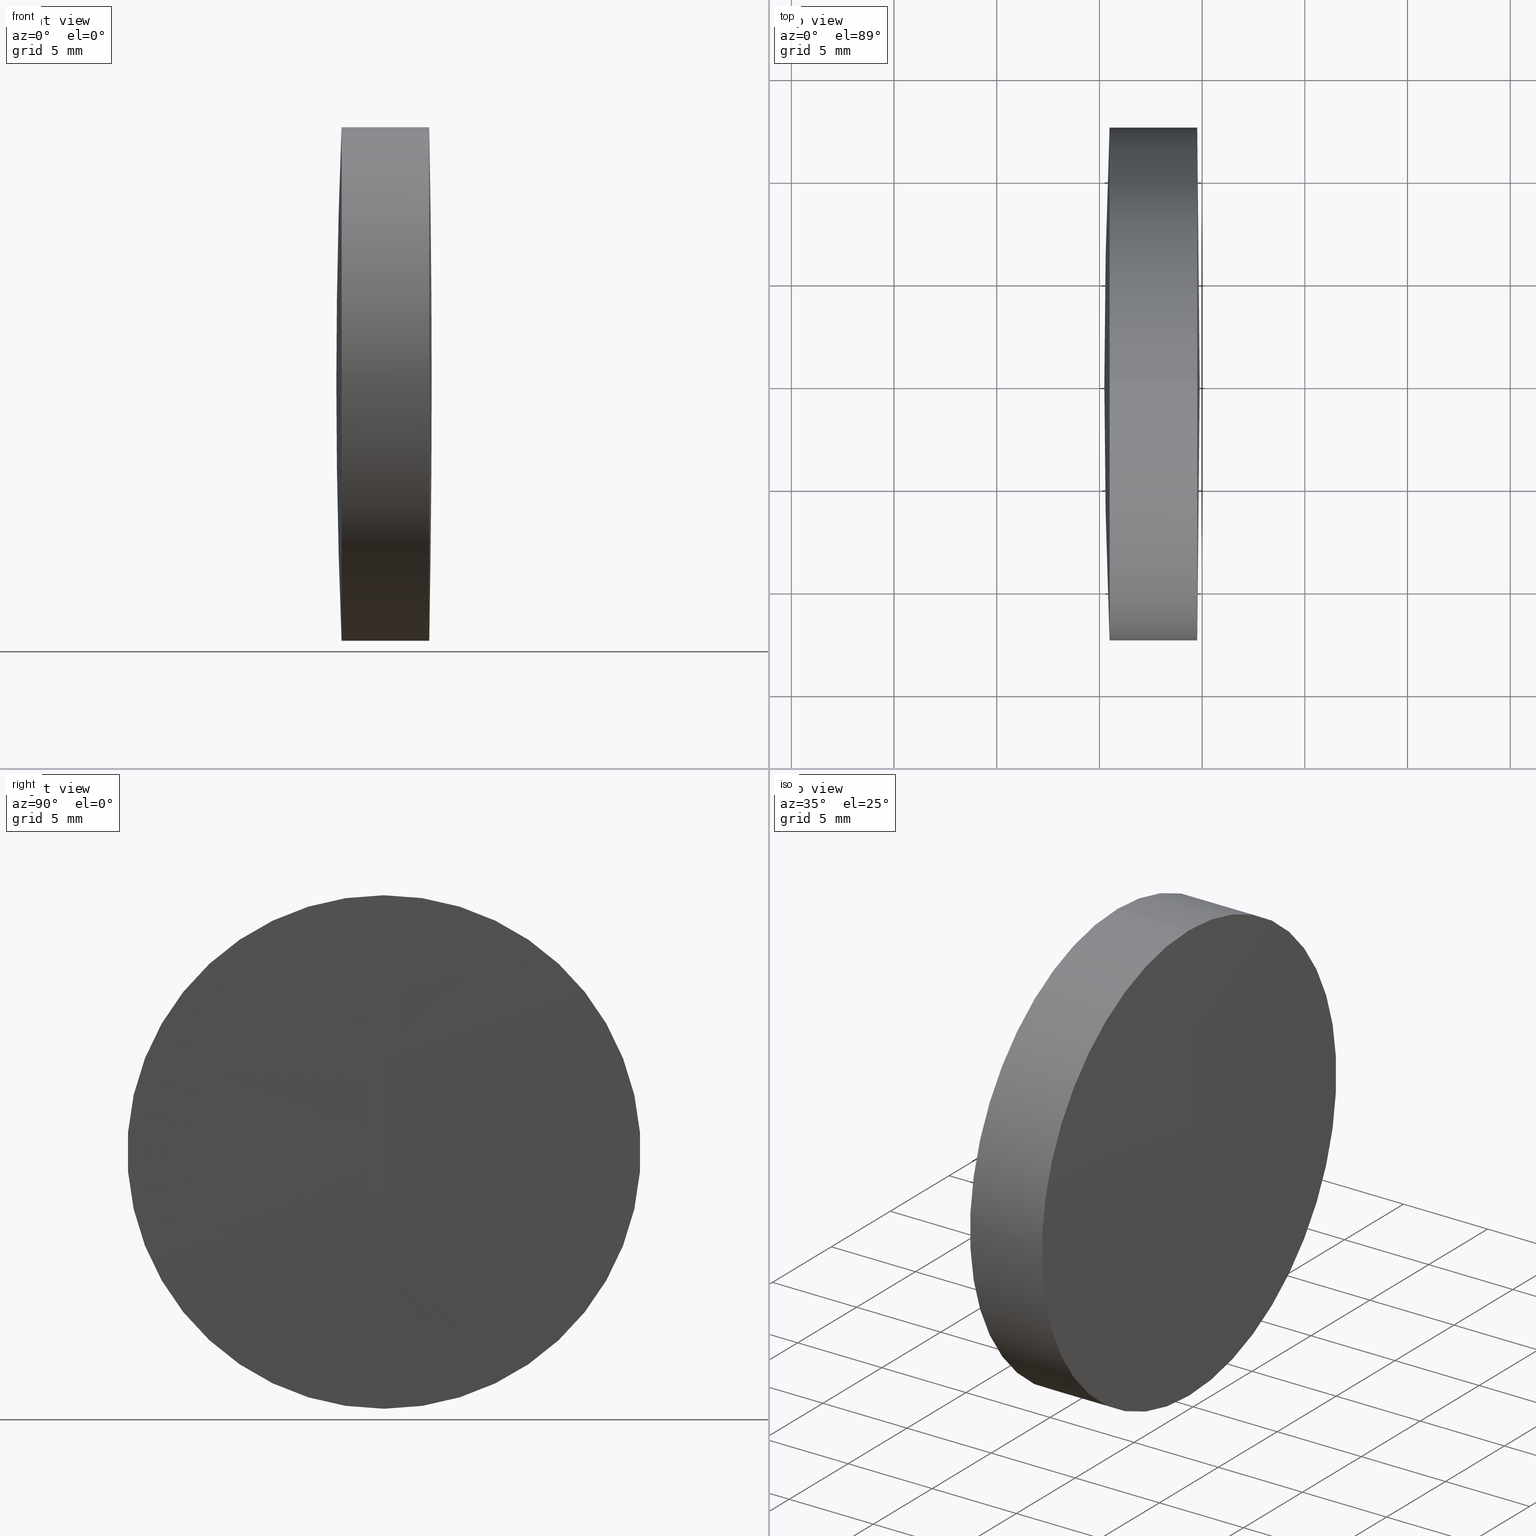
[diagram: canonical four-view strip — front | top / right | iso, engineering-drawing reading convention]
A machine part, canonical four-view strip (front | top / right | iso — engineering-drawing reading convention). The complete STEP part file that produces these views, byte-faithful:
ISO-10303-21;
HEADER;
FILE_DESCRIPTION (( 'STEP AP214' ),
    '1' );
FILE_NAME ('145049.STEP',
    '2019-05-13T05:37:13',
    ( 'user' ),
    ( '΢���й�' ),
    'SwSTEP 2.0',
    'SolidWorks 2016',
    '' );
FILE_SCHEMA (( 'AUTOMOTIVE_DESIGN' ));
ENDSEC;

DATA;
#1 = ORIENTED_EDGE ( 'NONE', *, *, #202, .F. ) ;
#2 = PRESENTATION_STYLE_ASSIGNMENT (( #316 ) ) ;
#3 = ADVANCED_FACE ( 'NONE', ( #252 ), #59, .T. ) ;
#4 = ORIENTED_EDGE ( 'NONE', *, *, #58, .T. ) ;
#5 = VERTEX_POINT ( 'NONE', #134 ) ;
#6 = CYLINDRICAL_SURFACE ( 'NONE', #265, 12.49999999999999300 ) ;
#7 = ORIENTED_EDGE ( 'NONE', *, *, #135, .F. ) ;
#8 = PRESENTATION_LAYER_ASSIGNMENT (  '', '', ( #336 ) ) ;
#9 = SPHERICAL_SURFACE ( 'NONE', #91, 307.0000000000000600 ) ;
#10 = EDGE_LOOP ( 'NONE', ( #1, #200, #343 ) ) ;
#11 = CARTESIAN_POINT ( 'NONE',  ( -449.9203310264251700, 0.0000000000000000000, 0.0000000000000000000 ) ) ;
#12 = DIRECTION ( 'NONE',  ( -1.000000000000000000, -0.0000000000000000000, -0.0000000000000000000 ) ) ;
#13 = CARTESIAN_POINT ( 'NONE',  ( 217.8796689735747800, 0.0000000000000000000, 1.244371753850170700E-014 ) ) ;
#14 = SPHERICAL_SURFACE ( 'NONE', #286, 203.0000000000000000 ) ;
#15 = DIRECTION ( 'NONE',  ( 0.0000000000000000000, 1.000000000000000000, 0.0000000000000000000 ) ) ;
#16 =( GEOMETRIC_REPRESENTATION_CONTEXT ( 3 ) GLOBAL_UNCERTAINTY_ASSIGNED_CONTEXT ( ( #149 ) ) GLOBAL_UNIT_ASSIGNED_CONTEXT ( ( #256, #279, #158 ) ) REPRESENTATION_CONTEXT ( 'NONE', 'WORKASPACE' ) );
#17 = VERTEX_POINT ( 'NONE', #166 ) ;
#18 = CARTESIAN_POINT ( 'NONE',  ( -0.5519199926577972300, 0.0000000000000000000, 12.49999999999999300 ) ) ;
#19 = SPHERICAL_SURFACE ( 'NONE', #67, 203.0000000000000300 ) ;
#20 = DIRECTION ( 'NONE',  ( -1.000000000000000000, -0.0000000000000000000, -0.0000000000000000000 ) ) ;
#21 = ORIENTED_EDGE ( 'NONE', *, *, #57, .F. ) ;
#22 = FILL_AREA_STYLE ('',( #317 ) ) ;
#23 =( NAMED_UNIT ( * ) PLANE_ANGLE_UNIT ( ) SI_UNIT ( $, .RADIAN. ) );
#24 = FILL_AREA_STYLE ('',( #290 ) ) ;
#25 = CIRCLE ( 'NONE', #197, 669.7999999999999500 ) ;
#26 = DIRECTION ( 'NONE',  ( 0.0000000000000000000, 0.0000000000000000000, -1.000000000000000000 ) ) ;
#27 = UNCERTAINTY_MEASURE_WITH_UNIT (LENGTH_MEASURE( 1.000000000000000100E-005 ), #181, 'distance_accuracy_value', 'NONE');
#28 = ORIENTED_EDGE ( 'NONE', *, *, #128, .T. ) ;
#29 = ADVANCED_FACE ( 'NONE', ( #199 ), #331, .T. ) ;
#30 = AXIS2_PLACEMENT_3D ( 'NONE', #100, #287, #121 ) ;
#31 = SPHERICAL_SURFACE ( 'NONE', #177, 203.0000000000000000 ) ;
#32 = DIRECTION ( 'NONE',  ( -0.0000000000000000000, 1.000000000000000000, 1.224646799147353200E-016 ) ) ;
#33 = DIRECTION ( 'NONE',  ( 0.0000000000000000000, 0.0000000000000000000, 1.000000000000000000 ) ) ;
#34 = AXIS2_PLACEMENT_3D ( 'NONE', #293, #131, #318 ) ;
#35 = DIRECTION ( 'NONE',  ( 0.0000000000000000000, 0.0000000000000000000, 1.000000000000000000 ) ) ;
#36 = CARTESIAN_POINT ( 'NONE',  ( 14.87966897357473400, 0.0000000000000000000, 1.355252715606880500E-017 ) ) ;
#37 = EDGE_CURVE ( 'NONE', #195, #5, #52, .T. ) ;
#38 = VERTEX_POINT ( 'NONE', #188 ) ;
#39 = CLOSED_SHELL ( 'NONE', ( #246, #304, #327, #3, #267, #87 ) ) ;
#40 = DIRECTION ( 'NONE',  ( 0.0000000000000000000, 0.0000000000000000000, -1.000000000000000000 ) ) ;
#41 = EDGE_CURVE ( 'NONE', #17, #330, #340, .T. ) ;
#42 = CARTESIAN_POINT ( 'NONE',  ( 217.4944512575927400, 0.0000000000000000000, 0.0000000000000000000 ) ) ;
#43 = SURFACE_STYLE_USAGE ( .BOTH. , #211 ) ;
#44 = SPHERICAL_SURFACE ( 'NONE', #322, 669.7999999999999500 ) ;
#45 = ORIENTED_EDGE ( 'NONE', *, *, #271, .T. ) ;
#46 = EDGE_LOOP ( 'NONE', ( #144, #93, #28, #21 ) ) ;
#47 = SURFACE_STYLE_USAGE ( .BOTH. , #215 ) ;
#48 = ORIENTED_EDGE ( 'NONE', *, *, #117, .F. ) ;
#49 = CARTESIAN_POINT ( 'NONE',  ( 14.87966897357473400, 0.0000000000000000000, 1.355252715606880500E-017 ) ) ;
#50 = DIRECTION ( 'NONE',  ( 0.0000000000000000000, 0.0000000000000000000, -1.000000000000000000 ) ) ;
#51 = AXIS2_PLACEMENT_3D ( 'NONE', #11, #113, #231 ) ;
#52 = CIRCLE ( 'NONE', #208, 203.0000000000000300 ) ;
#53 = ORIENTED_EDGE ( 'NONE', *, *, #171, .T. ) ;
#54 = ORIENTED_EDGE ( 'NONE', *, *, #183, .T. ) ;
#55 = ORIENTED_EDGE ( 'NONE', *, *, #241, .T. ) ;
#56 = PRODUCT_DEFINITION ( 'δ֪', '', #79, #326 ) ;
#57 = EDGE_CURVE ( 'NONE', #212, #302, #125, .T. ) ;
#58 = EDGE_CURVE ( 'NONE', #5, #86, #260, .T. ) ;
#59 = SPHERICAL_SURFACE ( 'NONE', #190, 307.0000000000000600 ) ;
#60 = SURFACE_STYLE_FILL_AREA ( #22 ) ;
#61 = ORIENTED_EDGE ( 'NONE', *, *, #84, .F. ) ;
#62 = ORIENTED_EDGE ( 'NONE', *, *, #171, .F. ) ;
#63 = DIRECTION ( 'NONE',  ( -1.000000000000000000, -0.0000000000000000000, -0.0000000000000000000 ) ) ;
#64 = VECTOR ( 'NONE', #312, 1000.000000000000000 ) ;
#65 = FILL_AREA_STYLE ('',( #311 ) ) ;
#66 = DIRECTION ( 'NONE',  ( 0.0000000000000000000, 1.000000000000000000, 0.0000000000000000000 ) ) ;
#67 = AXIS2_PLACEMENT_3D ( 'NONE', #254, #103, #35 ) ;
#68 = CARTESIAN_POINT ( 'NONE',  ( -449.9203310264251700, 0.0000000000000000000, 0.0000000000000000000 ) ) ;
#69 = DIRECTION ( 'NONE',  ( 0.0000000000000000000, 0.0000000000000000000, 1.000000000000000000 ) ) ;
#70 = FACE_OUTER_BOUND ( 'NONE', #155, .T. ) ;
#71 = ORIENTED_EDGE ( 'NONE', *, *, #135, .T. ) ;
#72 = SURFACE_STYLE_FILL_AREA ( #65 ) ;
#73 =( NAMED_UNIT ( * ) PLANE_ANGLE_UNIT ( ) SI_UNIT ( $, .RADIAN. ) );
#74 = DIRECTION ( 'NONE',  ( -1.000000000000000000, -0.0000000000000000000, -0.0000000000000000000 ) ) ;
#75 =( NAMED_UNIT ( * ) PLANE_ANGLE_UNIT ( ) SI_UNIT ( $, .RADIAN. ) );
#76 = DIRECTION ( 'NONE',  ( 0.0000000000000000000, 0.0000000000000000000, 1.000000000000000000 ) ) ;
#77 = CARTESIAN_POINT ( 'NONE',  ( 14.87966897357473400, 0.0000000000000000000, 1.355252715606880500E-017 ) ) ;
#78 = FACE_OUTER_BOUND ( 'NONE', #157, .T. ) ;
#79 = PRODUCT_DEFINITION_FORMATION_WITH_SPECIFIED_SOURCE ( '�κ�', '', #250, .NOT_KNOWN. ) ;
#80 = CARTESIAN_POINT ( 'NONE',  ( 522.2396689735747900, 0.0000000000000000000, -1.501556658541519300E-015 ) ) ;
#81 = DIRECTION ( 'NONE',  ( 0.0000000000000000000, 0.0000000000000000000, 1.000000000000000000 ) ) ;
#82 = EDGE_CURVE ( 'NONE', #195, #86, #268, .T. ) ;
#83 = VERTEX_POINT ( 'NONE', #346 ) ;
#84 = EDGE_CURVE ( 'NONE', #275, #302, #112, .T. ) ;
#85 = SHAPE_DEFINITION_REPRESENTATION ( #123, #313 ) ;
#86 = VERTEX_POINT ( 'NONE', #243 ) ;
#87 = ADVANCED_FACE ( 'NONE', ( #191 ), #328, .T. ) ;
#88 = VECTOR ( 'NONE', #12, 1000.000000000000000 ) ;
#89 = UNCERTAINTY_MEASURE_WITH_UNIT (LENGTH_MEASURE( 1.000000000000000100E-005 ), #239, 'distance_accuracy_value', 'NONE');
#90 = VERTEX_POINT ( 'NONE', #297 ) ;
#91 = AXIS2_PLACEMENT_3D ( 'NONE', #339, #124, #258 ) ;
#92 = VECTOR ( 'NONE', #95, 1000.000000000000000 ) ;
#93 = ORIENTED_EDGE ( 'NONE', *, *, #99, .T. ) ;
#94 = CARTESIAN_POINT ( 'NONE',  ( 14.87966897357473400, 0.0000000000000000000, 1.355252715606880500E-017 ) ) ;
#95 = DIRECTION ( 'NONE',  ( -1.000000000000000000, -0.0000000000000000000, -0.0000000000000000000 ) ) ;
#96 = LINE ( 'NONE', #178, #295 ) ;
#97 = PRODUCT_RELATED_PRODUCT_CATEGORY ( 'part', '', ( #250 ) ) ;
#98 = DIRECTION ( 'NONE',  ( -1.000000000000000000, -0.0000000000000000000, -0.0000000000000000000 ) ) ;
#99 = EDGE_CURVE ( 'NONE', #90, #38, #182, .T. ) ;
#100 = CARTESIAN_POINT ( 'NONE',  ( 219.7630195206821800, 0.0000000000000000000, 0.0000000000000000000 ) ) ;
#101 = DIRECTION ( 'NONE',  ( 0.0000000000000000000, -1.224646799147353200E-016, 1.000000000000000000 ) ) ;
#102 = EDGE_CURVE ( 'NONE', #83, #90, #248, .T. ) ;
#103 = DIRECTION ( 'NONE',  ( 0.0000000000000000000, 1.000000000000000000, 0.0000000000000000000 ) ) ;
#104 = DIRECTION ( 'NONE',  ( -1.000000000000000000, -0.0000000000000000000, -0.0000000000000000000 ) ) ;
#105 = AXIS2_PLACEMENT_3D ( 'NONE', #240, #74, #333 ) ;
#106 = CARTESIAN_POINT ( 'NONE',  ( -0.5519199926577972300, 0.0000000000000000000, 0.0000000000000000000 ) ) ;
#107 = AXIS2_PLACEMENT_3D ( 'NONE', #42, #236, #69 ) ;
#108 = ADVANCED_FACE ( 'NONE', ( #109 ), #31, .F. ) ;
#109 = FACE_OUTER_BOUND ( 'NONE', #214, .T. ) ;
#110 = EDGE_CURVE ( 'NONE', #275, #212, #172, .T. ) ;
#111 = EDGE_CURVE ( 'NONE', #83, #38, #25, .T. ) ;
#112 = CIRCLE ( 'NONE', #303, 203.0000000000000000 ) ;
#113 = DIRECTION ( 'NONE',  ( 0.0000000000000000000, 1.000000000000000000, 0.0000000000000000000 ) ) ;
#114 = ORIENTED_EDGE ( 'NONE', *, *, #110, .F. ) ;
#115 = DIRECTION ( 'NONE',  ( -0.0000000000000000000, 1.000000000000000000, 1.224646799147353200E-016 ) ) ;
#116 = ORIENTED_EDGE ( 'NONE', *, *, #58, .F. ) ;
#117 = EDGE_CURVE ( 'NONE', #17, #342, #232, .T. ) ;
#118 = AXIS2_PLACEMENT_3D ( 'NONE', #77, #161, #76 ) ;
#119 = DIRECTION ( 'NONE',  ( 0.0000000000000000000, 0.0000000000000000000, 1.000000000000000000 ) ) ;
#120 = DIRECTION ( 'NONE',  ( 0.0000000000000000000, 0.0000000000000000000, 1.000000000000000000 ) ) ;
#121 = DIRECTION ( 'NONE',  ( 0.0000000000000000000, 0.0000000000000000000, 1.000000000000000000 ) ) ;
#122 = AXIS2_PLACEMENT_3D ( 'NONE', #206, #233, #255 ) ;
#123 = PRODUCT_DEFINITION_SHAPE ( 'NONE', 'NONE',  #56 ) ;
#124 = DIRECTION ( 'NONE',  ( 0.0000000000000000000, 1.000000000000000000, 0.0000000000000000000 ) ) ;
#125 = CIRCLE ( 'NONE', #245, 12.50000000000005200 ) ;
#126 = CARTESIAN_POINT ( 'NONE',  ( 215.2396689735747100, 0.0000000000000000000, 1.729677170837035700E-014 ) ) ;
#127 = EDGE_LOOP ( 'NONE', ( #230, #54, #62, #151 ) ) ;
#128 = EDGE_CURVE ( 'NONE', #38, #302, #305, .T. ) ;
#129 =( NAMED_UNIT ( * ) SI_UNIT ( $, .STERADIAN. ) SOLID_ANGLE_UNIT ( ) );
#130 = ORIENTED_EDGE ( 'NONE', *, *, #110, .T. ) ;
#131 = DIRECTION ( 'NONE',  ( 0.0000000000000000000, 0.0000000000000000000, 1.000000000000000000 ) ) ;
#132 = DIRECTION ( 'NONE',  ( 0.0000000000000000000, -1.000000000000000000, 0.0000000000000000000 ) ) ;
#133 = DIRECTION ( 'NONE',  ( 0.0000000000000000000, -1.224646799147353500E-016, 1.000000000000000000 ) ) ;
#134 = CARTESIAN_POINT ( 'NONE',  ( 217.4944512575927400, 1.530808498934191300E-015, -12.49999999999999800 ) ) ;
#135 = EDGE_CURVE ( 'NONE', #5, #342, #96, .T. ) ;
#136 = COLOUR_RGB ( '',1.000000000000000000, 1.000000000000000000, 1.000000000000000000 ) ;
#137 = ADVANCED_FACE ( 'NONE', ( #162 ), #6, .T. ) ;
#138 = ORIENTED_EDGE ( 'NONE', *, *, #82, .F. ) ;
#139 = ORIENTED_EDGE ( 'NONE', *, *, #111, .T. ) ;
#140 = SPHERICAL_SURFACE ( 'NONE', #51, 669.7999999999999500 ) ;
#141 = AXIS2_PLACEMENT_3D ( 'NONE', #309, #32, #201 ) ;
#142 =( GEOMETRIC_REPRESENTATION_CONTEXT ( 3 ) GLOBAL_UNCERTAINTY_ASSIGNED_CONTEXT ( ( #27 ) ) GLOBAL_UNIT_ASSIGNED_CONTEXT ( ( #181, #23, #129 ) ) REPRESENTATION_CONTEXT ( 'NONE', 'WORKASPACE' ) );
#143 = CYLINDRICAL_SURFACE ( 'NONE', #122, 12.49999999999999800 ) ;
#144 = ORIENTED_EDGE ( 'NONE', *, *, #183, .F. ) ;
#145 = COLOUR_RGB ( '',1.000000000000000000, 1.000000000000000000, 1.000000000000000000 ) ;
#146 = DIRECTION ( 'NONE',  ( 0.0000000000000000000, 1.000000000000000000, 0.0000000000000000000 ) ) ;
#147 = CIRCLE ( 'NONE', #247, 12.49999999999999800 ) ;
#148 = CARTESIAN_POINT ( 'NONE',  ( -449.9203310264251700, 0.0000000000000000000, 0.0000000000000000000 ) ) ;
#149 = UNCERTAINTY_MEASURE_WITH_UNIT (LENGTH_MEASURE( 1.000000000000000100E-005 ), #256, 'distance_accuracy_value', 'NONE');
#150 = CARTESIAN_POINT ( 'NONE',  ( 215.4942533599098600, 0.0000000000000000000, 0.0000000000000000000 ) ) ;
#151 = ORIENTED_EDGE ( 'NONE', *, *, #128, .F. ) ;
#152 = CARTESIAN_POINT ( 'NONE',  ( 215.4942533599098600, 0.0000000000000000000, 0.0000000000000000000 ) ) ;
#153 = EDGE_CURVE ( 'NONE', #342, #17, #147, .T. ) ;
#154 = DIRECTION ( 'NONE',  ( 0.0000000000000000000, 0.0000000000000000000, 1.000000000000000000 ) ) ;
#155 = EDGE_LOOP ( 'NONE', ( #223, #237, #278 ) ) ;
#156 = CIRCLE ( 'NONE', #30, 12.49999999999993600 ) ;
#157 = EDGE_LOOP ( 'NONE', ( #261, #139, #227 ) ) ;
#158 =( NAMED_UNIT ( * ) SI_UNIT ( $, .STERADIAN. ) SOLID_ANGLE_UNIT ( ) );
#159 = APPLICATION_PROTOCOL_DEFINITION ( 'draft international standard', 'automotive_design', 1998, #184 ) ;
#160 = PRODUCT_CONTEXT ( 'NONE', #184, 'mechanical' ) ;
#161 = DIRECTION ( 'NONE',  ( 0.0000000000000000000, 1.000000000000000000, 0.0000000000000000000 ) ) ;
#162 = FACE_OUTER_BOUND ( 'NONE', #46, .T. ) ;
#163 = DIRECTION ( 'NONE',  ( 0.0000000000000000000, 0.0000000000000000000, 1.000000000000000000 ) ) ;
#164 = AXIS2_PLACEMENT_3D ( 'NONE', #94, #277, #175 ) ;
#165 = CARTESIAN_POINT ( 'NONE',  ( 14.87966897357473400, 0.0000000000000000000, 1.355252715606880500E-017 ) ) ;
#166 = CARTESIAN_POINT ( 'NONE',  ( 215.4942533599098600, 0.0000000000000000000, 12.49999999999993100 ) ) ;
#167 = LINE ( 'NONE', #204, #92 ) ;
#168 = AXIS2_PLACEMENT_3D ( 'NONE', #338, #20, #154 ) ;
#169 = ADVANCED_FACE ( 'NONE', ( #226 ), #14, .F. ) ;
#170 = ORIENTED_EDGE ( 'NONE', *, *, #251, .F. ) ;
#171 = EDGE_CURVE ( 'NONE', #302, #212, #283, .T. ) ;
#172 = CIRCLE ( 'NONE', #164, 203.0000000000000000 ) ;
#173 = AXIS2_PLACEMENT_3D ( 'NONE', #80, #244, #50 ) ;
#174 = DIRECTION ( 'NONE',  ( 0.0000000000000000000, 0.0000000000000000000, 1.000000000000000000 ) ) ;
#175 = DIRECTION ( 'NONE',  ( 0.0000000000000000000, -1.224646799147353200E-016, 1.000000000000000000 ) ) ;
#176 = CARTESIAN_POINT ( 'NONE',  ( -0.5519199926577972300, 1.530808498934190700E-015, -12.49999999999999300 ) ) ;
#177 = AXIS2_PLACEMENT_3D ( 'NONE', #185, #146, #174 ) ;
#178 = CARTESIAN_POINT ( 'NONE',  ( -9.702612178336682500, 1.530808498934191300E-015, -12.49999999999999800 ) ) ;
#179 = STYLED_ITEM ( 'NONE', ( #192 ), #329 ) ;
#180 = CARTESIAN_POINT ( 'NONE',  ( 215.4942533599098600, 1.530808498934183000E-015, -12.49999999999993400 ) ) ;
#181 =( LENGTH_UNIT ( ) NAMED_UNIT ( * ) SI_UNIT ( .MILLI., .METRE. ) );
#182 = CIRCLE ( 'NONE', #105, 12.49999999999993600 ) ;
#183 = EDGE_CURVE ( 'NONE', #90, #212, #217, .T. ) ;
#184 = APPLICATION_CONTEXT ( 'automotive_design' ) ;
#185 = CARTESIAN_POINT ( 'NONE',  ( 14.87966897357473400, 0.0000000000000000000, 1.355252715606880500E-017 ) ) ;
#186 = APPLICATION_PROTOCOL_DEFINITION ( 'draft international standard', 'automotive_design', 1998, #344 ) ;
#187 = CARTESIAN_POINT ( 'NONE',  ( 217.4944512575927100, 0.0000000000000000000, 0.0000000000000000000 ) ) ;
#188 = CARTESIAN_POINT ( 'NONE',  ( 219.7630195206821800, 0.0000000000000000000, 12.49999999999993600 ) ) ;
#189 = CARTESIAN_POINT ( 'NONE',  ( 522.2396689735747900, 0.0000000000000000000, -1.501556658541519300E-015 ) ) ;
#190 = AXIS2_PLACEMENT_3D ( 'NONE', #189, #325, #266 ) ;
#191 = FACE_OUTER_BOUND ( 'NONE', #276, .T. ) ;
#192 = PRESENTATION_STYLE_ASSIGNMENT (( #43 ) ) ;
#193 = ADVANCED_FACE ( 'NONE', ( #78 ), #44, .T. ) ;
#194 = ORIENTED_EDGE ( 'NONE', *, *, #153, .F. ) ;
#195 = VERTEX_POINT ( 'NONE', #13 ) ;
#196 = ORIENTED_EDGE ( 'NONE', *, *, #84, .T. ) ;
#197 = AXIS2_PLACEMENT_3D ( 'NONE', #68, #207, #40 ) ;
#198 = PRESENTATION_LAYER_ASSIGNMENT (  '', '', ( #179 ) ) ;
#199 = FACE_OUTER_BOUND ( 'NONE', #127, .T. ) ;
#200 = ORIENTED_EDGE ( 'NONE', *, *, #153, .T. ) ;
#201 = DIRECTION ( 'NONE',  ( 0.0000000000000000000, -1.224646799147353500E-016, 1.000000000000000000 ) ) ;
#202 = EDGE_CURVE ( 'NONE', #342, #330, #292, .T. ) ;
#203 = EDGE_LOOP ( 'NONE', ( #7, #4, #55, #194 ) ) ;
#204 = CARTESIAN_POINT ( 'NONE',  ( -9.702612178336682500, 0.0000000000000000000, 12.49999999999999800 ) ) ;
#205 = CARTESIAN_POINT ( 'NONE',  ( 217.4944512575927100, 0.0000000000000000000, 0.0000000000000000000 ) ) ;
#206 = CARTESIAN_POINT ( 'NONE',  ( -9.702612178336682500, 0.0000000000000000000, 0.0000000000000000000 ) ) ;
#207 = DIRECTION ( 'NONE',  ( 0.0000000000000000000, -1.000000000000000000, 0.0000000000000000000 ) ) ;
#208 = AXIS2_PLACEMENT_3D ( 'NONE', #165, #321, #133 ) ;
#209 = CARTESIAN_POINT ( 'NONE',  ( 217.4944512575927100, 0.0000000000000000000, 12.50000000000009800 ) ) ;
#210 = COLOUR_RGB ( '',1.000000000000000000, 1.000000000000000000, 1.000000000000000000 ) ;
#211 = SURFACE_SIDE_STYLE ('',( #60 ) ) ;
#212 = VERTEX_POINT ( 'NONE', #280 ) ;
#213 = CARTESIAN_POINT ( 'NONE',  ( 217.8796689735747500, 0.0000000000000000000, 1.244371753850170400E-014 ) ) ;
#214 = EDGE_LOOP ( 'NONE', ( #61, #130, #300 ) ) ;
#215 = SURFACE_SIDE_STYLE ('',( #285 ) ) ;
#216 = DIRECTION ( 'NONE',  ( 0.0000000000000000000, -1.000000000000000000, 0.0000000000000000000 ) ) ;
#217 = LINE ( 'NONE', #176, #64 ) ;
#218 = MANIFOLD_SOLID_BREP ( '��ת3', #324 ) ;
#219 = AXIS2_PLACEMENT_3D ( 'NONE', #152, #337, #120 ) ;
#220 = PRESENTATION_STYLE_ASSIGNMENT (( #47 ) ) ;
#221 = MECHANICAL_DESIGN_GEOMETRIC_PRESENTATION_REPRESENTATION (  '', ( #179 ), #238 ) ;
#222 = CIRCLE ( 'NONE', #107, 12.49999999999999800 ) ;
#223 = ORIENTED_EDGE ( 'NONE', *, *, #117, .T. ) ;
#224 = FACE_OUTER_BOUND ( 'NONE', #332, .T. ) ;
#225 = ADVANCED_FACE ( 'NONE', ( #224 ), #140, .T. ) ;
#226 = FACE_OUTER_BOUND ( 'NONE', #263, .T. ) ;
#227 = ORIENTED_EDGE ( 'NONE', *, *, #99, .F. ) ;
#228 = AXIS2_PLACEMENT_3D ( 'NONE', #106, #299, #81 ) ;
#229 = FACE_OUTER_BOUND ( 'NONE', #203, .T. ) ;
#230 = ORIENTED_EDGE ( 'NONE', *, *, #251, .T. ) ;
#231 = DIRECTION ( 'NONE',  ( 0.0000000000000000000, 0.0000000000000000000, 1.000000000000000000 ) ) ;
#232 = CIRCLE ( 'NONE', #219, 12.49999999999999800 ) ;
#233 = DIRECTION ( 'NONE',  ( -1.000000000000000000, -0.0000000000000000000, -0.0000000000000000000 ) ) ;
#234 = AXIS2_PLACEMENT_3D ( 'NONE', #205, #63, #282 ) ;
#235 = DIRECTION ( 'NONE',  ( -1.000000000000000000, -0.0000000000000000000, -0.0000000000000000000 ) ) ;
#236 = DIRECTION ( 'NONE',  ( -1.000000000000000000, -0.0000000000000000000, -0.0000000000000000000 ) ) ;
#237 = ORIENTED_EDGE ( 'NONE', *, *, #202, .T. ) ;
#238 =( GEOMETRIC_REPRESENTATION_CONTEXT ( 3 ) GLOBAL_UNCERTAINTY_ASSIGNED_CONTEXT ( ( #89 ) ) GLOBAL_UNIT_ASSIGNED_CONTEXT ( ( #239, #73, #259 ) ) REPRESENTATION_CONTEXT ( 'NONE', 'WORKASPACE' ) );
#239 =( LENGTH_UNIT ( ) NAMED_UNIT ( * ) SI_UNIT ( .MILLI., .METRE. ) );
#240 = CARTESIAN_POINT ( 'NONE',  ( 219.7630195206821800, 0.0000000000000000000, 0.0000000000000000000 ) ) ;
#241 = EDGE_CURVE ( 'NONE', #86, #17, #167, .T. ) ;
#242 =( LENGTH_UNIT ( ) NAMED_UNIT ( * ) SI_UNIT ( .MILLI., .METRE. ) );
#243 = CARTESIAN_POINT ( 'NONE',  ( 217.4944512575927400, 0.0000000000000000000, 12.49999999999999800 ) ) ;
#244 = DIRECTION ( 'NONE',  ( 0.0000000000000000000, -1.000000000000000000, 0.0000000000000000000 ) ) ;
#245 = AXIS2_PLACEMENT_3D ( 'NONE', #187, #345, #163 ) ;
#246 = ADVANCED_FACE ( 'NONE', ( #301 ), #19, .T. ) ;
#247 = AXIS2_PLACEMENT_3D ( 'NONE', #150, #284, #119 ) ;
#248 = CIRCLE ( 'NONE', #141, 669.7999999999999500 ) ;
#249 = DIRECTION ( 'NONE',  ( 0.0000000000000000000, 0.0000000000000000000, 1.000000000000000000 ) ) ;
#250 = PRODUCT ( '145049', '145049', '', ( #160 ) ) ;
#251 = EDGE_CURVE ( 'NONE', #38, #90, #156, .T. ) ;
#252 = FACE_OUTER_BOUND ( 'NONE', #10, .T. ) ;
#253 = DIRECTION ( 'NONE',  ( 0.0000000000000000000, 0.0000000000000000000, 1.000000000000000000 ) ) ;
#254 = CARTESIAN_POINT ( 'NONE',  ( 14.87966897357473400, 0.0000000000000000000, 1.355252715606880500E-017 ) ) ;
#255 = DIRECTION ( 'NONE',  ( 0.0000000000000000000, 0.0000000000000000000, 1.000000000000000000 ) ) ;
#256 =( LENGTH_UNIT ( ) NAMED_UNIT ( * ) SI_UNIT ( .MILLI., .METRE. ) );
#257 = AXIS2_PLACEMENT_3D ( 'NONE', #296, #104, #264 ) ;
#258 = DIRECTION ( 'NONE',  ( 0.0000000000000000000, 0.0000000000000000000, 1.000000000000000000 ) ) ;
#259 =( NAMED_UNIT ( * ) SI_UNIT ( $, .STERADIAN. ) SOLID_ANGLE_UNIT ( ) );
#260 = CIRCLE ( 'NONE', #257, 12.49999999999999800 ) ;
#261 = ORIENTED_EDGE ( 'NONE', *, *, #102, .F. ) ;
#262 =( NAMED_UNIT ( * ) SI_UNIT ( $, .STERADIAN. ) SOLID_ANGLE_UNIT ( ) );
#263 = EDGE_LOOP ( 'NONE', ( #114, #196, #53 ) ) ;
#264 = DIRECTION ( 'NONE',  ( 0.0000000000000000000, 0.0000000000000000000, 1.000000000000000000 ) ) ;
#265 = AXIS2_PLACEMENT_3D ( 'NONE', #314, #235, #249 ) ;
#266 = DIRECTION ( 'NONE',  ( 0.0000000000000000000, 0.0000000000000000000, 1.000000000000000000 ) ) ;
#267 = ADVANCED_FACE ( 'NONE', ( #229 ), #143, .T. ) ;
#268 = CIRCLE ( 'NONE', #273, 203.0000000000000300 ) ;
#269 = EDGE_LOOP ( 'NONE', ( #45, #71, #48, #323 ) ) ;
#270 = ORIENTED_EDGE ( 'NONE', *, *, #37, .T. ) ;
#271 = EDGE_CURVE ( 'NONE', #86, #5, #222, .T. ) ;
#272 = UNCERTAINTY_MEASURE_WITH_UNIT (LENGTH_MEASURE( 1.000000000000000100E-005 ), #242, 'distance_accuracy_value', 'NONE');
#273 = AXIS2_PLACEMENT_3D ( 'NONE', #49, #216, #26 ) ;
#274 = CYLINDRICAL_SURFACE ( 'NONE', #168, 12.49999999999999800 ) ;
#275 = VERTEX_POINT ( 'NONE', #213 ) ;
#276 = EDGE_LOOP ( 'NONE', ( #298, #341, #116 ) ) ;
#277 = DIRECTION ( 'NONE',  ( -0.0000000000000000000, 1.000000000000000000, 1.224646799147353200E-016 ) ) ;
#278 = ORIENTED_EDGE ( 'NONE', *, *, #41, .F. ) ;
#279 =( NAMED_UNIT ( * ) PLANE_ANGLE_UNIT ( ) SI_UNIT ( $, .RADIAN. ) );
#280 = CARTESIAN_POINT ( 'NONE',  ( 217.4944512575927100, 1.530808498934203600E-015, -12.50000000000009800 ) ) ;
#281 = STYLED_ITEM ( 'NONE', ( #220 ), #313 ) ;
#282 = DIRECTION ( 'NONE',  ( 0.0000000000000000000, 0.0000000000000000000, 1.000000000000000000 ) ) ;
#283 = CIRCLE ( 'NONE', #234, 12.50000000000005200 ) ;
#284 = DIRECTION ( 'NONE',  ( -1.000000000000000000, -0.0000000000000000000, -0.0000000000000000000 ) ) ;
#285 = SURFACE_STYLE_FILL_AREA ( #24 ) ;
#286 = AXIS2_PLACEMENT_3D ( 'NONE', #36, #66, #253 ) ;
#287 = DIRECTION ( 'NONE',  ( -1.000000000000000000, -0.0000000000000000000, -0.0000000000000000000 ) ) ;
#288 = SURFACE_SIDE_STYLE ('',( #72 ) ) ;
#289 = FACE_OUTER_BOUND ( 'NONE', #269, .T. ) ;
#290 = FILL_AREA_STYLE_COLOUR ( '', #210 ) ;
#291 = ORIENTED_EDGE ( 'NONE', *, *, #111, .F. ) ;
#292 = CIRCLE ( 'NONE', #307, 307.0000000000000600 ) ;
#293 = CARTESIAN_POINT ( 'NONE',  ( 0.0000000000000000000, 0.0000000000000000000, 0.0000000000000000000 ) ) ;
#294 = DIRECTION ( 'NONE',  ( 0.0000000000000000000, 0.0000000000000000000, -1.000000000000000000 ) ) ;
#295 = VECTOR ( 'NONE', #98, 1000.000000000000000 ) ;
#296 = CARTESIAN_POINT ( 'NONE',  ( 217.4944512575927400, 0.0000000000000000000, 0.0000000000000000000 ) ) ;
#297 = CARTESIAN_POINT ( 'NONE',  ( 219.7630195206821800, 1.530808498934187200E-015, -12.49999999999993600 ) ) ;
#298 = ORIENTED_EDGE ( 'NONE', *, *, #37, .F. ) ;
#299 = DIRECTION ( 'NONE',  ( -1.000000000000000000, -0.0000000000000000000, -0.0000000000000000000 ) ) ;
#300 = ORIENTED_EDGE ( 'NONE', *, *, #57, .T. ) ;
#301 = FACE_OUTER_BOUND ( 'NONE', #308, .T. ) ;
#302 = VERTEX_POINT ( 'NONE', #209 ) ;
#303 = AXIS2_PLACEMENT_3D ( 'NONE', #319, #132, #294 ) ;
#304 = ADVANCED_FACE ( 'NONE', ( #289 ), #274, .T. ) ;
#305 = LINE ( 'NONE', #18, #88 ) ;
#306 = PRESENTATION_LAYER_ASSIGNMENT (  '', '', ( #281 ) ) ;
#307 = AXIS2_PLACEMENT_3D ( 'NONE', #310, #115, #101 ) ;
#308 = EDGE_LOOP ( 'NONE', ( #138, #270, #334 ) ) ;
#309 = CARTESIAN_POINT ( 'NONE',  ( -449.9203310264251700, 0.0000000000000000000, 0.0000000000000000000 ) ) ;
#310 = CARTESIAN_POINT ( 'NONE',  ( 522.2396689735747900, 0.0000000000000000000, -1.501556658541519300E-015 ) ) ;
#311 = FILL_AREA_STYLE_COLOUR ( '', #145 ) ;
#312 = DIRECTION ( 'NONE',  ( -1.000000000000000000, -0.0000000000000000000, -0.0000000000000000000 ) ) ;
#313 = ADVANCED_BREP_SHAPE_REPRESENTATION ( '145049', ( #329, #218, #34 ), #142 ) ;
#314 = CARTESIAN_POINT ( 'NONE',  ( -0.5519199926577972300, 0.0000000000000000000, 0.0000000000000000000 ) ) ;
#315 = ORIENTED_EDGE ( 'NONE', *, *, #102, .T. ) ;
#316 = SURFACE_STYLE_USAGE ( .BOTH. , #288 ) ;
#317 = FILL_AREA_STYLE_COLOUR ( '', #136 ) ;
#318 = DIRECTION ( 'NONE',  ( 1.000000000000000000, 0.0000000000000000000, 0.0000000000000000000 ) ) ;
#319 = CARTESIAN_POINT ( 'NONE',  ( 14.87966897357473400, 0.0000000000000000000, 1.355252715606880500E-017 ) ) ;
#320 = MECHANICAL_DESIGN_GEOMETRIC_PRESENTATION_REPRESENTATION (  '', ( #281 ), #335 ) ;
#321 = DIRECTION ( 'NONE',  ( -0.0000000000000000000, 1.000000000000000000, 1.224646799147353200E-016 ) ) ;
#322 = AXIS2_PLACEMENT_3D ( 'NONE', #148, #15, #33 ) ;
#323 = ORIENTED_EDGE ( 'NONE', *, *, #241, .F. ) ;
#324 = CLOSED_SHELL ( 'NONE', ( #225, #29, #108, #169, #137, #193 ) ) ;
#325 = DIRECTION ( 'NONE',  ( 0.0000000000000000000, 1.000000000000000000, 0.0000000000000000000 ) ) ;
#326 = PRODUCT_DEFINITION_CONTEXT ( 'detailed design', #344, 'design' ) ;
#327 = ADVANCED_FACE ( 'NONE', ( #70 ), #9, .T. ) ;
#328 = SPHERICAL_SURFACE ( 'NONE', #118, 203.0000000000000300 ) ;
#329 = MANIFOLD_SOLID_BREP ( '��ת1', #39 ) ;
#330 = VERTEX_POINT ( 'NONE', #126 ) ;
#331 = CYLINDRICAL_SURFACE ( 'NONE', #228, 12.49999999999999300 ) ;
#332 = EDGE_LOOP ( 'NONE', ( #291, #315, #170 ) ) ;
#333 = DIRECTION ( 'NONE',  ( 0.0000000000000000000, 0.0000000000000000000, 1.000000000000000000 ) ) ;
#334 = ORIENTED_EDGE ( 'NONE', *, *, #271, .F. ) ;
#335 =( GEOMETRIC_REPRESENTATION_CONTEXT ( 3 ) GLOBAL_UNCERTAINTY_ASSIGNED_CONTEXT ( ( #272 ) ) GLOBAL_UNIT_ASSIGNED_CONTEXT ( ( #242, #75, #262 ) ) REPRESENTATION_CONTEXT ( 'NONE', 'WORKASPACE' ) );
#336 = STYLED_ITEM ( 'NONE', ( #2 ), #218 ) ;
#337 = DIRECTION ( 'NONE',  ( -1.000000000000000000, -0.0000000000000000000, -0.0000000000000000000 ) ) ;
#338 = CARTESIAN_POINT ( 'NONE',  ( -9.702612178336682500, 0.0000000000000000000, 0.0000000000000000000 ) ) ;
#339 = CARTESIAN_POINT ( 'NONE',  ( 522.2396689735747900, 0.0000000000000000000, -1.501556658541519300E-015 ) ) ;
#340 = CIRCLE ( 'NONE', #173, 307.0000000000000600 ) ;
#341 = ORIENTED_EDGE ( 'NONE', *, *, #82, .T. ) ;
#342 = VERTEX_POINT ( 'NONE', #180 ) ;
#343 = ORIENTED_EDGE ( 'NONE', *, *, #41, .T. ) ;
#344 = APPLICATION_CONTEXT ( 'automotive_design' ) ;
#345 = DIRECTION ( 'NONE',  ( -1.000000000000000000, -0.0000000000000000000, -0.0000000000000000000 ) ) ;
#346 = CARTESIAN_POINT ( 'NONE',  ( 219.8796689735747500, 0.0000000000000000000, 4.101342130344486000E-014 ) ) ;
#347 = MECHANICAL_DESIGN_GEOMETRIC_PRESENTATION_REPRESENTATION (  '', ( #336 ), #16 ) ;
ENDSEC;
END-ISO-10303-21;
